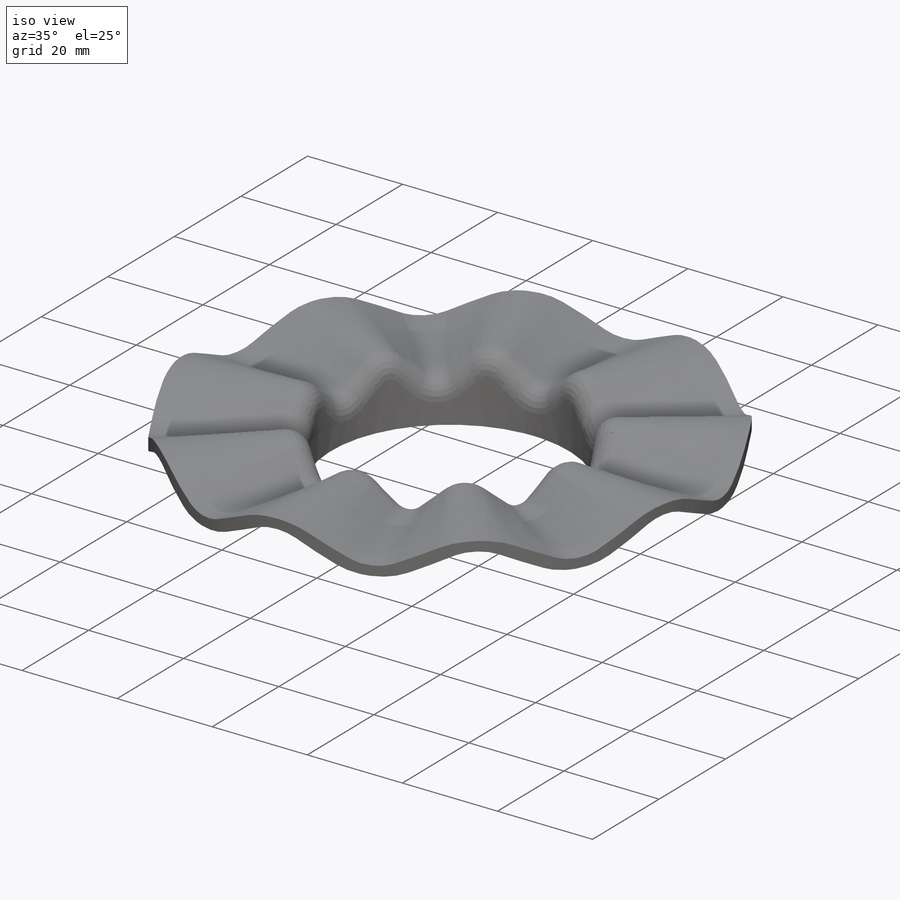
[diagram: iso view]
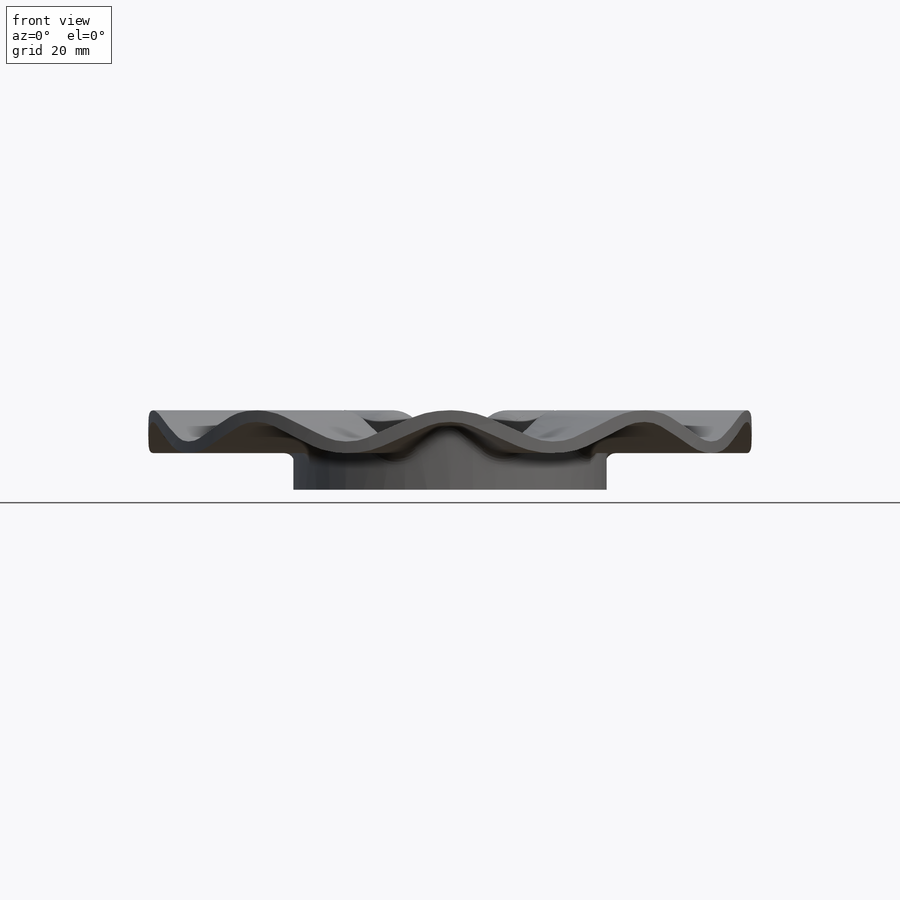
[diagram: front view]
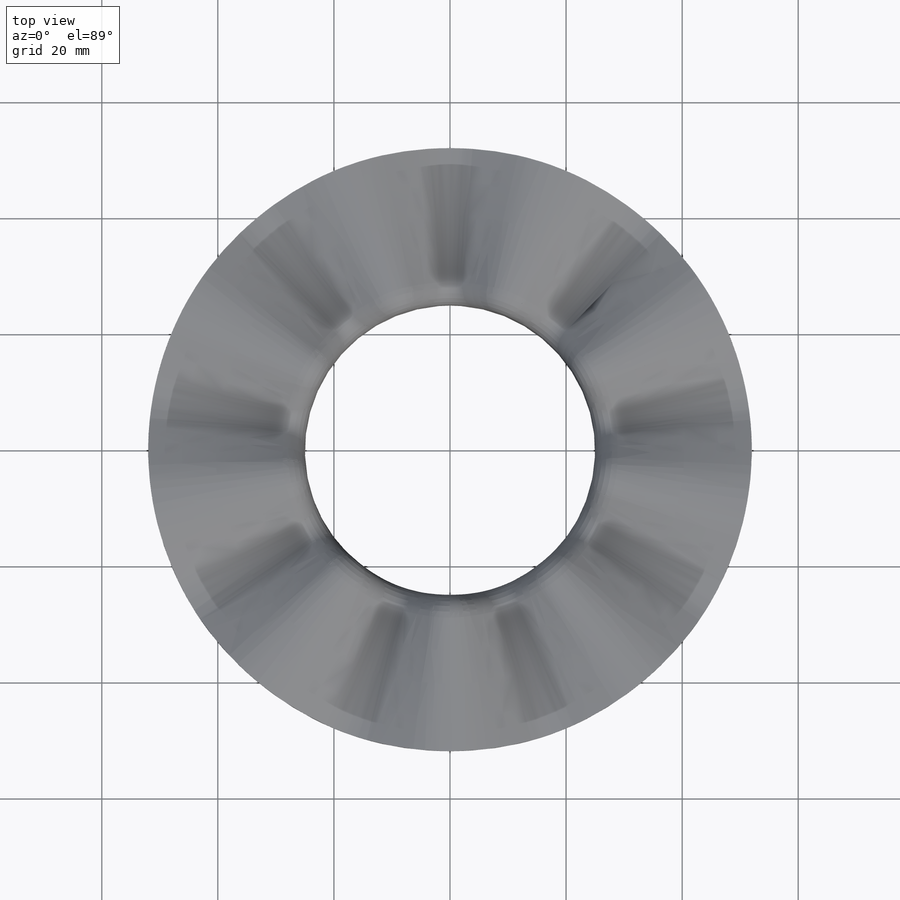
[diagram: top view]
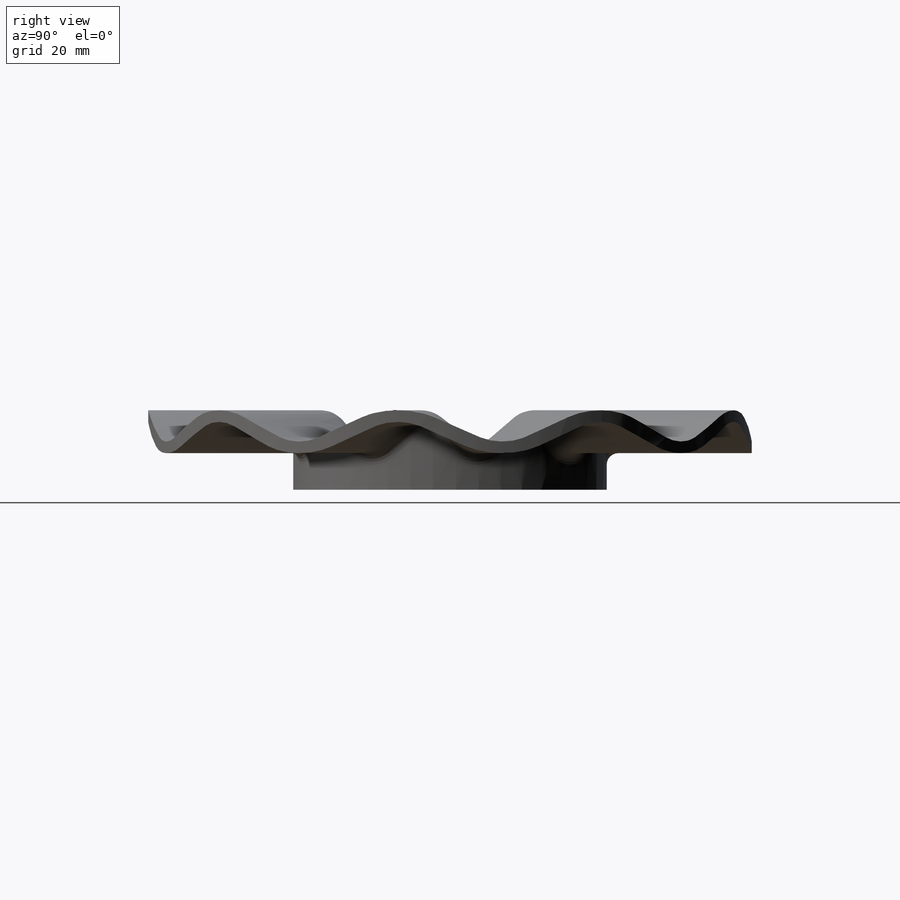
[diagram: right view]
SOLIDWORKS PART (.sldprt)
format: sldprt  version: not decoded by parser v0  size: 1,411,584 bytes
history: native  units: mm
features: sketch x8, plane x4, cut_extrude x3, extrude x2, fillet x2, material x1, pattern_circular x1 + 2 further entries (+8 scaffold rows collapsed)
feature tree (31):
  scaffold x8  (default folders/planes/origin — collapsed)
  material  "Allgemein"
  plane  "Vorderansicht"
  plane  "Draufsicht"
  plane  "Seitenansicht"
  "Y-Achse"
  "Z-Achse"
  sketch  "Skizze1"  dims[c1.D1=50.0mm c1.D2=~64.944011mm c1.D3=~114.083532mm c1.D5=60.0mm c1.D6=104.0mm c2.D2=2.0mm c2.D3=25.0mm c2.D4=30.0mm c3.D4=40.0deg c3.D5=~18.849556mm]
  plane  "Ebene1"
  sketch  "Skizze2"  dims[c1.D2=~4.123591mm c1.D4=~2.332751mm c1.D6=~4.123591mm c1.D1=~18.849556mm c2.D2=~9.685387mm c2.D3=~7.908328mm c2.D4=~11.104787mm c2.D5=~4.072566mm c3.D5=100.0deg c3.D6=~7.305211mm c3.D7=10.0mm]
  sketch  "Skizze3"
  extrude  "Aufsatz-Linear austragen1"  [1 undecoded]
  sketch  "Skizze4"  dims[c1.D3=~36.676956mm c1.D1=1.0mm c1.D2=1.0mm c2.D1=1.0mm c2.D2=1.0mm c3.D1=25.0mm]
  pattern_circular  "Kreismuster1"  Count=9 Angle=360deg
  sketch  "Skizze5"
  cut_extrude  "Schnitt-Linear austragen1"  Depth=2mm
  sketch  "Skizze7"
  extrude  "Aufsatz-Linear austragen2"  Depth=15mm
  fillet  "Verrundung6"  Radius=2mm
  sketch  "Skizze9"
  cut_extrude  "Schnitt-Linear austragen5"  [1 undecoded]
  fillet  "Verrundung7"  Radius=4mm
  sketch  "Skizze8"  dims[D1=100.0mm]
  cut_extrude  "Schnitt-Linear austragen4"  [1 undecoded]
decode coverage: 9 of 16 modeling features carry decoded parameters; 2 rows unclassified (native names shown)
note: ~ marks probable driven/reference dimensions
note: 3 parameter values undecoded
summary: no parameter record found for 3 features
note: suppression state not decoded; provenance and decode notes live in map.json
